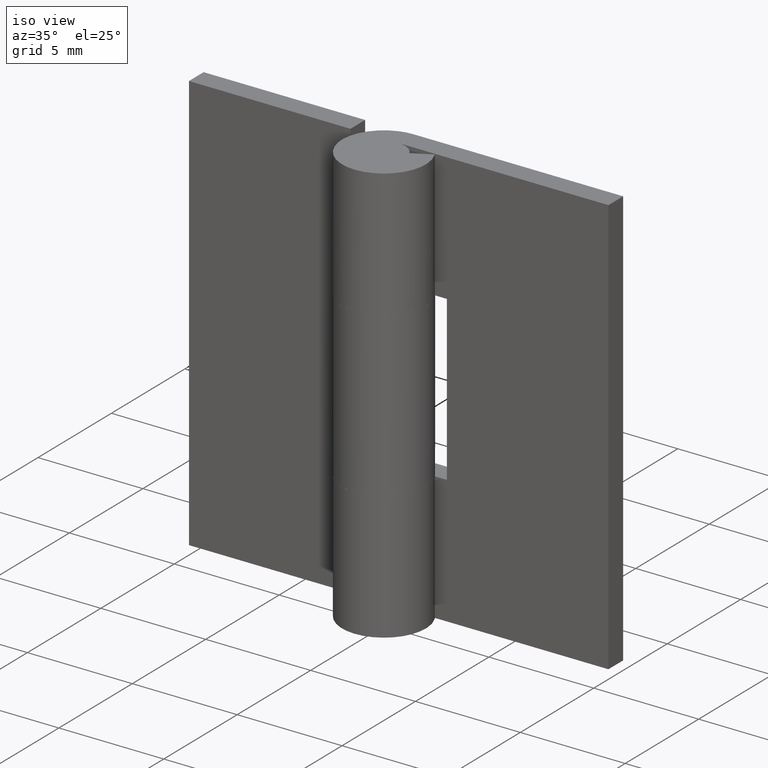
[diagram: clean part render]
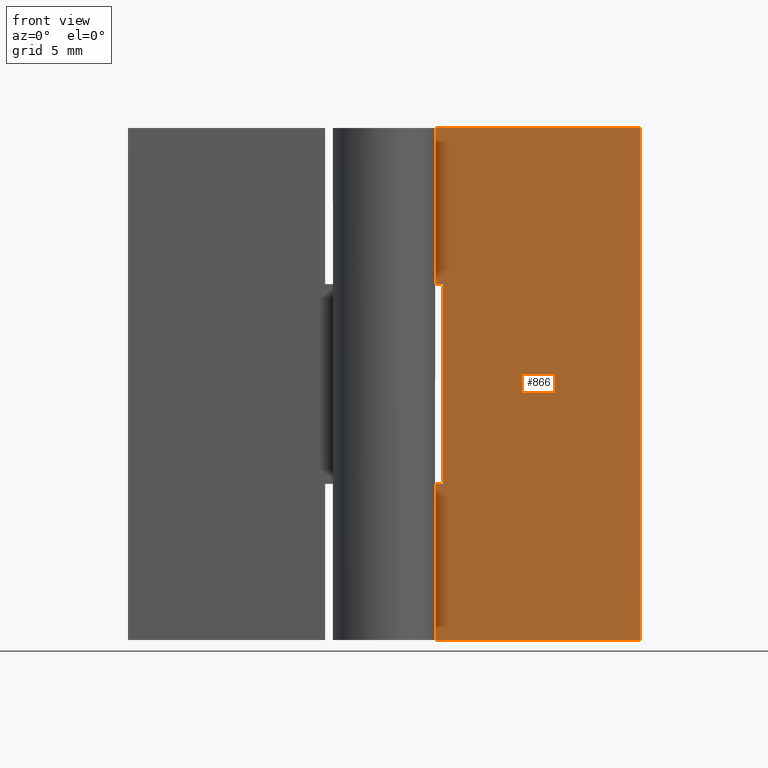
[diagram: tour spotlight — one face highlighted and labeled with its STEP entity id]
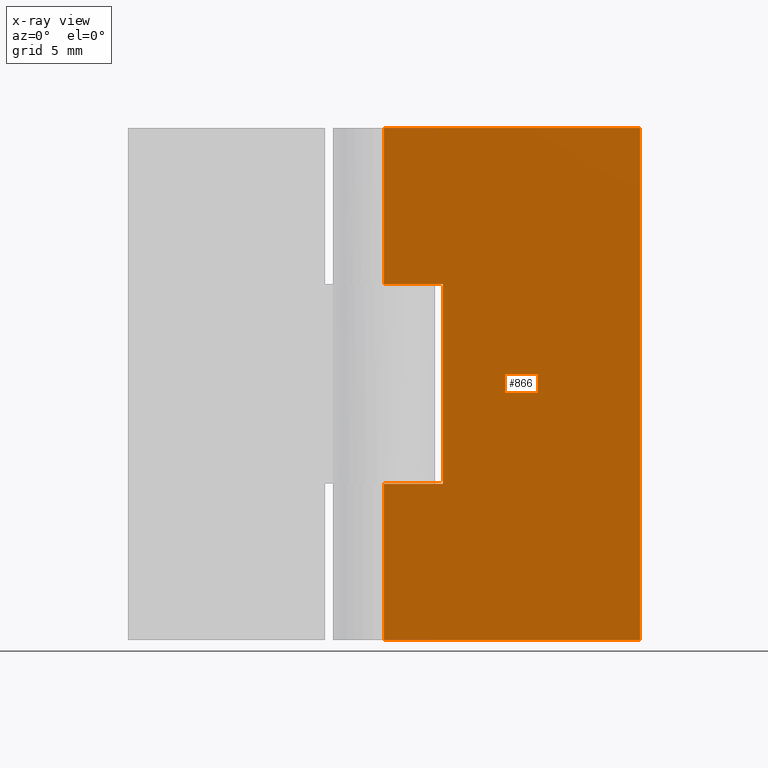
[diagram: x-ray of the same camera — body ghosted, this tour face saturated]
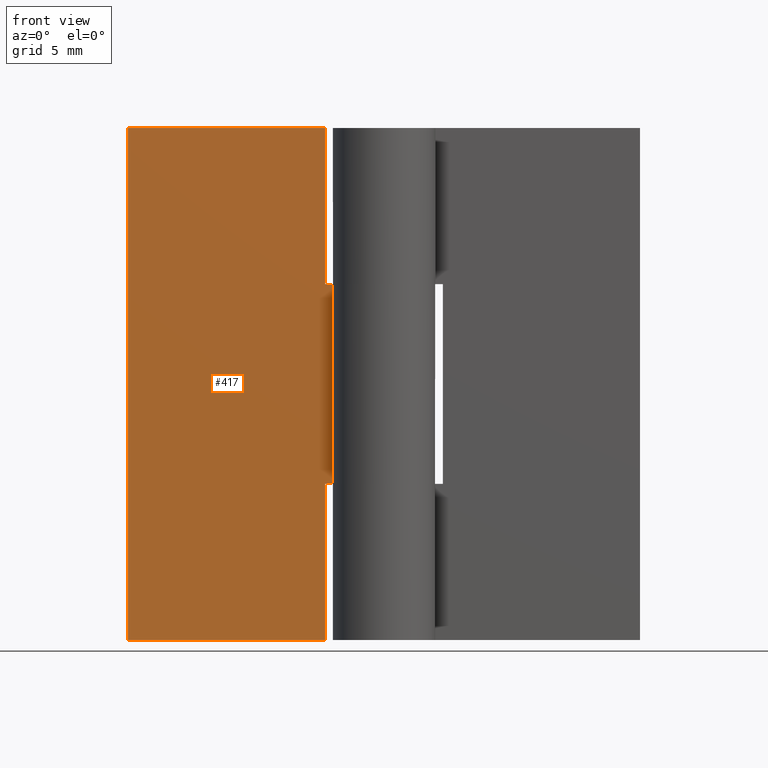
[diagram: tour spotlight — one face highlighted and labeled with its STEP entity id]
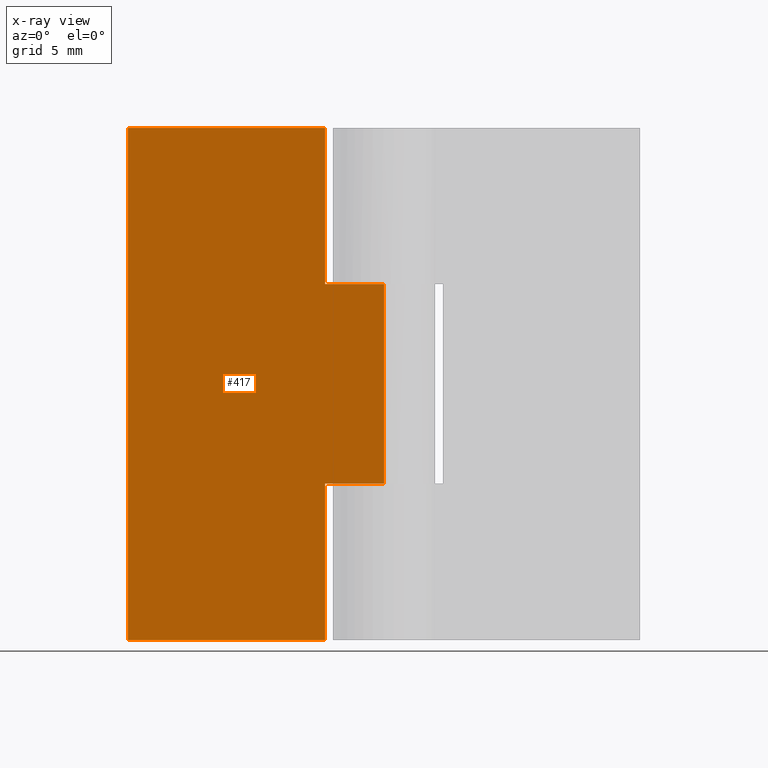
[diagram: x-ray of the same camera — body ghosted, this tour face saturated]
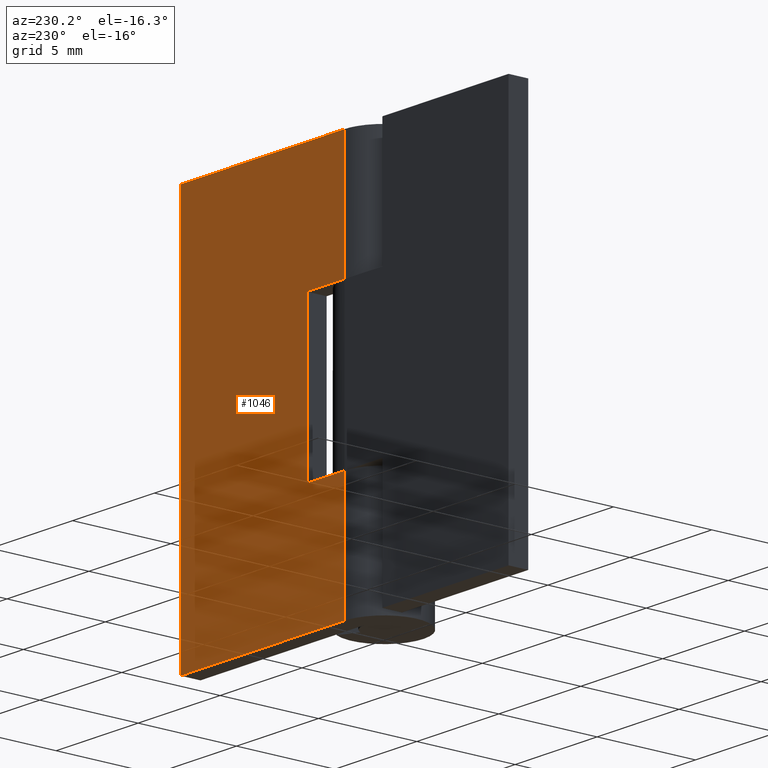
[diagram: tour spotlight — one face highlighted and labeled with its STEP entity id]
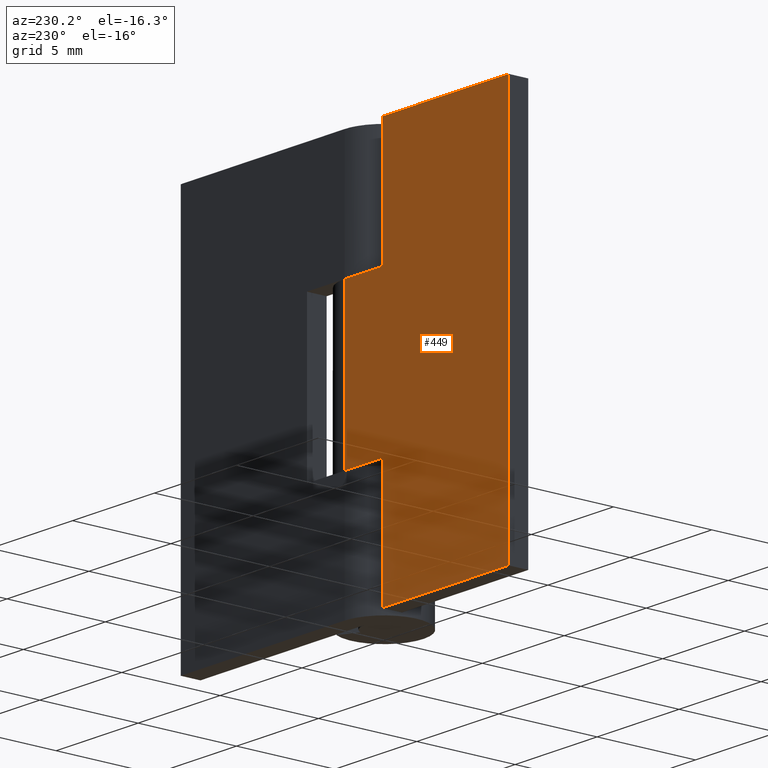
[diagram: tour spotlight — one face highlighted and labeled with its STEP entity id]
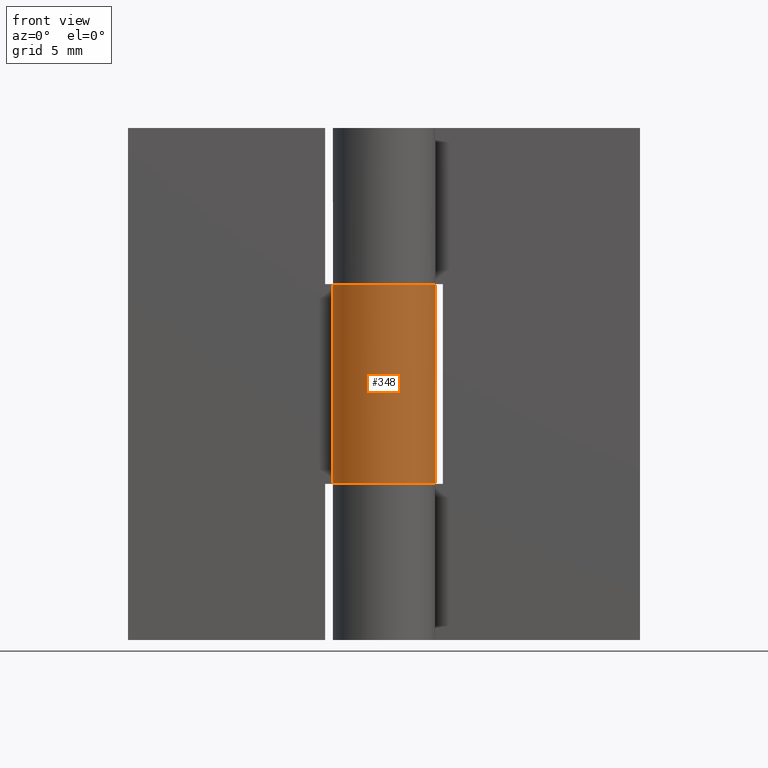
[diagram: tour spotlight — one face highlighted and labeled with its STEP entity id]
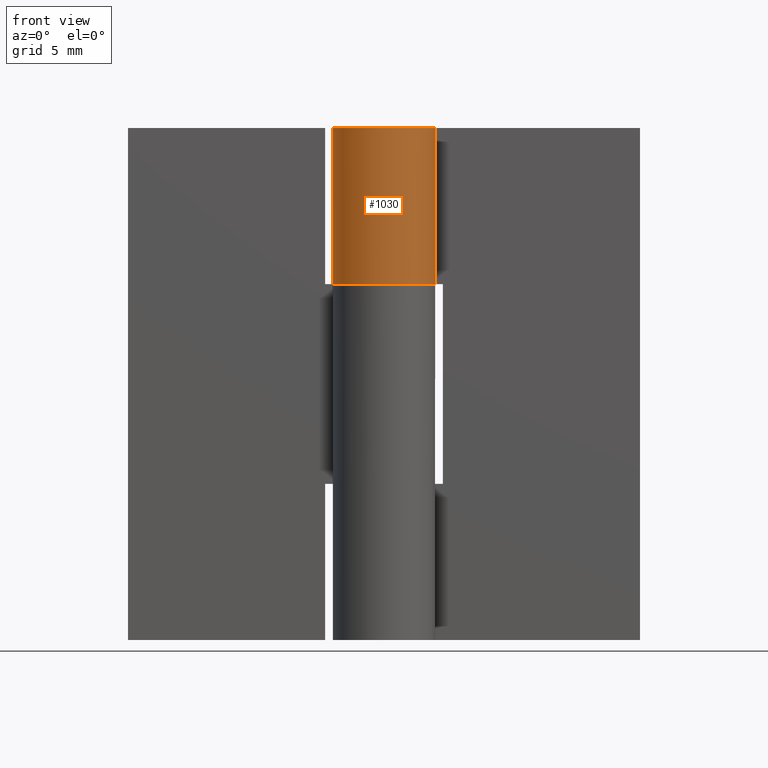
[diagram: tour spotlight — one face highlighted and labeled with its STEP entity id]
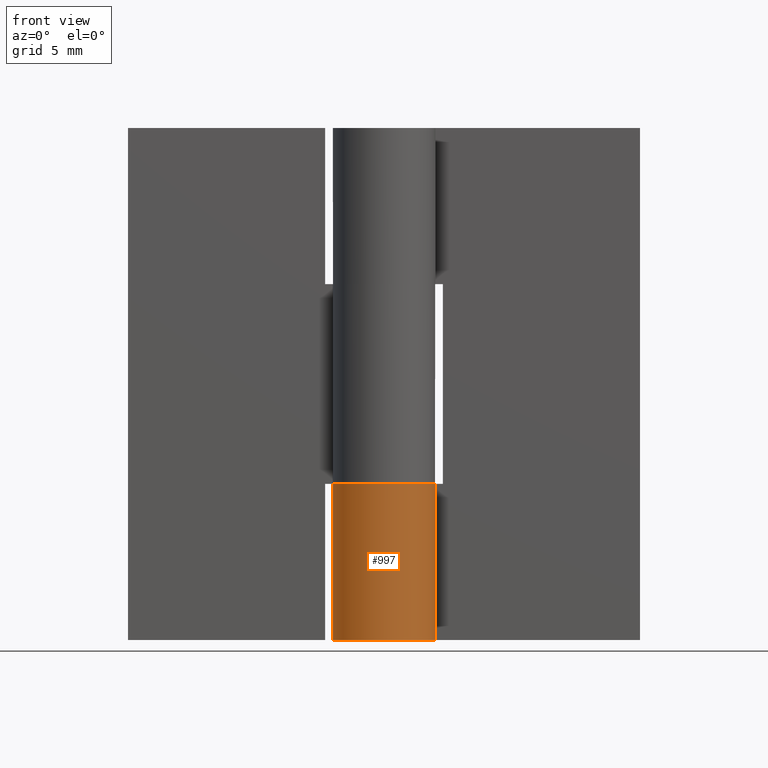
[diagram: tour spotlight — one face highlighted and labeled with its STEP entity id]
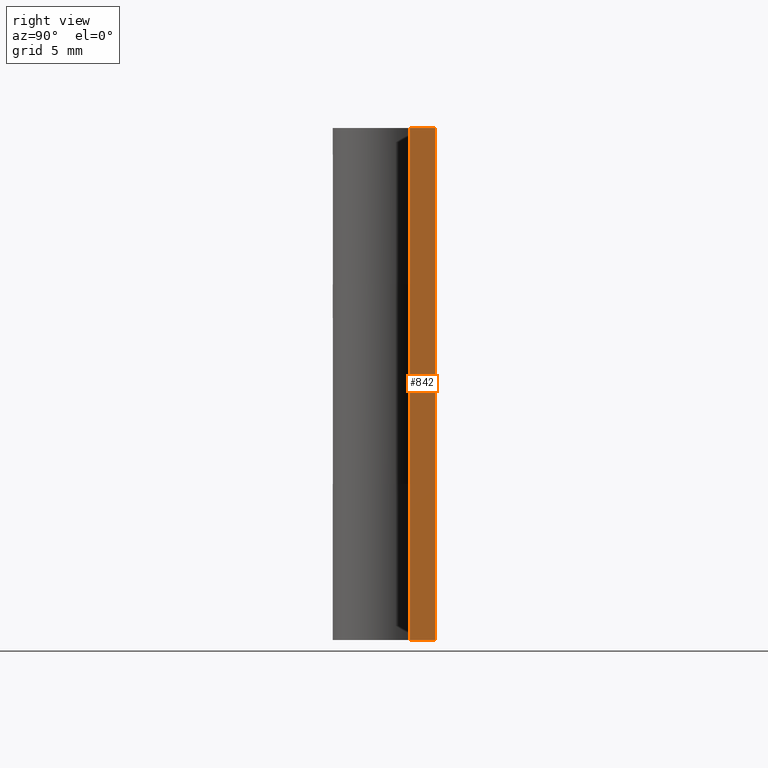
[diagram: tour spotlight — one face highlighted and labeled with its STEP entity id]
A machine part: a face-by-face anatomy tour. The part has 30 B-rep faces; the first image is the clean iso view, then the 8 largest visible faces are spotlighted one at a time (largest first), each with its STEP entity span.

Face 1 — front view, entity #866. An x-ray twin of the same camera follows (body ghosted, this face saturated) — the face is partly hidden behind the body. In plain terms, the highlighted face is a freeform B-spline surface patch.
Definition (entity closure, byte-faithful):
#526=CARTESIAN_POINT('',(-1.836937E-016,1.0,6.099997000000000));
#527=VERTEX_POINT('',#526);
#547=CARTESIAN_POINT('',(2.300003000000000,1.0,6.099997000000080));
#548=VERTEX_POINT('',#547);
#549=CARTESIAN_POINT('',(-1.836937E-016,1.0,6.099997000000000));
#550=CARTESIAN_POINT('',(2.300003000000000,1.0,6.099997000000080));
#551=QUASI_UNIFORM_CURVE('',1,(#549,#550),.UNSPECIFIED.,.F.,.U.);
#552=EDGE_CURVE('',#527,#548,#551,.T.);
#583=CARTESIAN_POINT('',(2.300003000000000,1.0,13.900002999999900));
#584=VERTEX_POINT('',#583);
#590=CARTESIAN_POINT('',(-1.836937E-016,1.0,13.900002999999939));
#591=VERTEX_POINT('',#590);
#592=CARTESIAN_POINT('',(2.300003000000000,1.0,13.900002999999900));
#593=CARTESIAN_POINT('',(-1.836937E-016,1.0,13.900002999999939));
#594=QUASI_UNIFORM_CURVE('',1,(#592,#593),.UNSPECIFIED.,.F.,.U.);
#595=EDGE_CURVE('',#584,#591,#594,.T.);
#652=CARTESIAN_POINT('',(2.300003000000000,1.0,6.099997000000080));
#653=CARTESIAN_POINT('',(2.300003000000000,1.0,13.900002999999900));
#654=QUASI_UNIFORM_CURVE('',1,(#652,#653),.UNSPECIFIED.,.F.,.U.);
#655=EDGE_CURVE('',#548,#584,#654,.T.);
#681=CARTESIAN_POINT('',(10.0,1.0,0.0));
#682=VERTEX_POINT('',#681);
#688=CARTESIAN_POINT('',(-1.836910E-016,1.0,0.0));
#689=VERTEX_POINT('',#688);
#690=CARTESIAN_POINT('',(-1.836910E-016,1.0,0.0));
#691=CARTESIAN_POINT('',(10.0,1.0,0.0));
#692=QUASI_UNIFORM_CURVE('',1,(#690,#691),.UNSPECIFIED.,.F.,.U.);
#693=EDGE_CURVE('',#689,#682,#692,.T.);
#787=CARTESIAN_POINT('',(-1.836910E-016,1.0,20.0));
#788=VERTEX_POINT('',#787);
#808=CARTESIAN_POINT('',(10.0,1.0,20.0));
#809=VERTEX_POINT('',#808);
#810=CARTESIAN_POINT('',(-1.836910E-016,1.0,20.0));
#811=CARTESIAN_POINT('',(10.0,1.0,20.0));
#812=QUASI_UNIFORM_CURVE('',1,(#810,#811),.UNSPECIFIED.,.F.,.U.);
#813=EDGE_CURVE('',#788,#809,#812,.T.);
#835=CARTESIAN_POINT('',(10.0,1.0,20.0));
#836=CARTESIAN_POINT('',(10.0,1.0,0.0));
#837=QUASI_UNIFORM_CURVE('',1,(#835,#836),.UNSPECIFIED.,.F.,.U.);
#838=EDGE_CURVE('',#809,#682,#837,.T.);
#843=CARTESIAN_POINT('',(-0.499499980618060,1.0,-0.998999961236120));
#844=CARTESIAN_POINT('',(-0.499499980618060,1.0,20.999000497677919));
#845=CARTESIAN_POINT('',(10.499500248838959,1.0,-0.998999961236120));
#846=CARTESIAN_POINT('',(10.499500248838959,1.0,20.999000497677919));
#847=B_SPLINE_SURFACE_WITH_KNOTS('',1,1,((#843,#845),(#844,#846)),.UNSPECIFIED.,.F.,.F.,.U.,(2,2),(2,2),(0.0,21.998000458914039),(0.0,10.999000229457019),.UNSPECIFIED.);
#848=ORIENTED_EDGE('',*,*,#595,.F.);
#849=ORIENTED_EDGE('',*,*,#655,.F.);
#850=ORIENTED_EDGE('',*,*,#552,.F.);
#851=CARTESIAN_POINT('',(-1.836937E-016,1.0,6.099997000000000));
#852=CARTESIAN_POINT('',(-1.836910E-016,1.0,0.0));
#853=QUASI_UNIFORM_CURVE('',1,(#851,#852),.UNSPECIFIED.,.F.,.U.);
#854=EDGE_CURVE('',#527,#689,#853,.T.);
#855=ORIENTED_EDGE('',*,*,#854,.T.);
#856=ORIENTED_EDGE('',*,*,#693,.T.);
#857=ORIENTED_EDGE('',*,*,#838,.F.);
#858=ORIENTED_EDGE('',*,*,#813,.F.);
#859=CARTESIAN_POINT('',(-1.836910E-016,1.0,20.0));
#860=CARTESIAN_POINT('',(-1.836937E-016,1.0,13.900002999999939));
#861=QUASI_UNIFORM_CURVE('',1,(#859,#860),.UNSPECIFIED.,.F.,.U.);
#862=EDGE_CURVE('',#788,#591,#861,.T.);
#863=ORIENTED_EDGE('',*,*,#862,.T.);
#864=EDGE_LOOP('',(#848,#849,#850,#855,#856,#857,#858,#863));
#865=FACE_OUTER_BOUND('',#864,.T.);
#866=ADVANCED_FACE('',(#865),#847,.F.);

Face 2 — front view, entity #417. An x-ray twin of the same camera follows (body ghosted, this face saturated) — the face is partly hidden behind the body. In plain terms, the highlighted face is a freeform B-spline surface patch.
Definition (entity closure, byte-faithful):
#49=CARTESIAN_POINT('',(-2.300003000000000,1.0,0.0));
#50=VERTEX_POINT('',#49);
#65=CARTESIAN_POINT('',(-2.300003000000000,1.0,6.099997000000100));
#66=VERTEX_POINT('',#65);
#72=CARTESIAN_POINT('',(-2.300003000000000,1.0,0.0));
#73=CARTESIAN_POINT('',(-2.300003000000000,1.0,6.099997000000100));
#74=QUASI_UNIFORM_CURVE('',1,(#72,#73),.UNSPECIFIED.,.F.,.U.);
#75=EDGE_CURVE('',#50,#66,#74,.T.);
#121=CARTESIAN_POINT('',(0.0,1.0,6.099997000000080));
#122=VERTEX_POINT('',#121);
#142=CARTESIAN_POINT('',(-2.300003000000000,1.0,6.099997000000100));
#143=CARTESIAN_POINT('',(0.0,1.0,6.099997000000080));
#144=QUASI_UNIFORM_CURVE('',1,(#142,#143),.UNSPECIFIED.,.F.,.U.);
#145=EDGE_CURVE('',#66,#122,#144,.T.);
#155=CARTESIAN_POINT('',(-2.300003000000000,1.0,13.900002999999900));
#156=VERTEX_POINT('',#155);
#171=CARTESIAN_POINT('',(-2.300003000000000,1.0,20.0));
#172=VERTEX_POINT('',#171);
#178=CARTESIAN_POINT('',(-2.300003000000000,1.0,13.900002999999900));
#179=CARTESIAN_POINT('',(-2.300003000000000,1.0,20.0));
#180=QUASI_UNIFORM_CURVE('',1,(#178,#179),.UNSPECIFIED.,.F.,.U.);
#181=EDGE_CURVE('',#156,#172,#180,.T.);
#193=CARTESIAN_POINT('',(0.0,1.0,13.900002999999939));
#194=VERTEX_POINT('',#193);
#248=CARTESIAN_POINT('',(0.0,1.0,13.900002999999939));
#249=CARTESIAN_POINT('',(-2.300003000000000,1.0,13.900002999999900));
#250=QUASI_UNIFORM_CURVE('',1,(#248,#249),.UNSPECIFIED.,.F.,.U.);
#251=EDGE_CURVE('',#194,#156,#250,.T.);
#262=CARTESIAN_POINT('',(-10.0,1.0,0.0));
#263=VERTEX_POINT('',#262);
#264=CARTESIAN_POINT('',(-10.0,1.0,0.0));
#265=CARTESIAN_POINT('',(-2.300003000000000,1.0,0.0));
#266=QUASI_UNIFORM_CURVE('',1,(#264,#265),.UNSPECIFIED.,.F.,.U.);
#267=EDGE_CURVE('',#263,#50,#266,.T.);
#289=CARTESIAN_POINT('',(-10.0,1.0,20.0));
#290=VERTEX_POINT('',#289);
#291=CARTESIAN_POINT('',(-10.0,1.0,20.0));
#292=CARTESIAN_POINT('',(-2.300003000000000,1.0,20.0));
#293=QUASI_UNIFORM_CURVE('',1,(#291,#292),.UNSPECIFIED.,.F.,.U.);
#294=EDGE_CURVE('',#290,#172,#293,.T.);
#387=CARTESIAN_POINT('',(0.0,1.0,13.900002999999939));
#388=CARTESIAN_POINT('',(0.0,1.0,6.099997000000080));
#389=QUASI_UNIFORM_CURVE('',1,(#387,#388),.UNSPECIFIED.,.F.,.U.);
#390=EDGE_CURVE('',#194,#122,#389,.T.);
#398=CARTESIAN_POINT('',(-10.499499980618060,1.0,-0.998999961236120));
#399=CARTESIAN_POINT('',(-10.499499980618060,1.0,20.999000497677919));
#400=CARTESIAN_POINT('',(0.499500248838961,1.0,-0.998999961236120));
#401=CARTESIAN_POINT('',(0.499500248838961,1.0,20.999000497677919));
#402=B_SPLINE_SURFACE_WITH_KNOTS('',1,1,((#398,#400),(#399,#401)),.UNSPECIFIED.,.F.,.F.,.U.,(2,2),(2,2),(0.0,21.998000458914039),(0.0,10.999000229457019),.UNSPECIFIED.);
#403=ORIENTED_EDGE('',*,*,#75,.T.);
#404=ORIENTED_EDGE('',*,*,#145,.T.);
#405=ORIENTED_EDGE('',*,*,#390,.F.);
#406=ORIENTED_EDGE('',*,*,#251,.T.);
#407=ORIENTED_EDGE('',*,*,#181,.T.);
#408=ORIENTED_EDGE('',*,*,#294,.F.);
#409=CARTESIAN_POINT('',(-10.0,1.0,20.0));
#410=CARTESIAN_POINT('',(-10.0,1.0,0.0));
#411=QUASI_UNIFORM_CURVE('',1,(#409,#410),.UNSPECIFIED.,.F.,.U.);
#412=EDGE_CURVE('',#290,#263,#411,.T.);
#413=ORIENTED_EDGE('',*,*,#412,.T.);
#414=ORIENTED_EDGE('',*,*,#267,.T.);
#415=EDGE_LOOP('',(#403,#404,#405,#406,#407,#408,#413,#414));
#416=FACE_OUTER_BOUND('',#415,.T.);
#417=ADVANCED_FACE('',(#416),#402,.F.);

Face 3 — auxiliary view, entity #1046. In plain terms, the highlighted face is a freeform B-spline surface patch.
Definition (entity closure, byte-faithful):
#498=CARTESIAN_POINT('',(0.0,2.0,6.099997000000000));
#499=VERTEX_POINT('',#498);
#554=CARTESIAN_POINT('',(2.300003000000000,2.0,6.099997000000000));
#555=VERTEX_POINT('',#554);
#561=CARTESIAN_POINT('',(0.0,2.0,6.099997000000000));
#562=CARTESIAN_POINT('',(2.300003000000000,2.0,6.099997000000000));
#563=QUASI_UNIFORM_CURVE('',1,(#561,#562),.UNSPECIFIED.,.F.,.U.);
#564=EDGE_CURVE('',#499,#555,#563,.T.);
#574=CARTESIAN_POINT('',(2.300003000000000,2.0,13.900002999999900));
#575=VERTEX_POINT('',#574);
#576=CARTESIAN_POINT('',(0.0,2.0,13.900002999999900));
#577=VERTEX_POINT('',#576);
#578=CARTESIAN_POINT('',(2.300003000000000,2.0,13.900002999999900));
#579=CARTESIAN_POINT('',(0.0,2.0,13.900002999999900));
#580=QUASI_UNIFORM_CURVE('',1,(#578,#579),.UNSPECIFIED.,.F.,.U.);
#581=EDGE_CURVE('',#575,#577,#580,.T.);
#658=CARTESIAN_POINT('',(2.300003000000000,2.0,6.099997000000000));
#659=CARTESIAN_POINT('',(2.300003000000000,2.0,13.900002999999900));
#660=QUASI_UNIFORM_CURVE('',1,(#658,#659),.UNSPECIFIED.,.F.,.U.);
#661=EDGE_CURVE('',#555,#575,#660,.T.);
#672=CARTESIAN_POINT('',(10.0,2.0,0.0));
#673=VERTEX_POINT('',#672);
#674=CARTESIAN_POINT('',(-3.673819E-016,2.0,0.0));
#675=VERTEX_POINT('',#674);
#676=CARTESIAN_POINT('',(10.0,2.0,0.0));
#677=CARTESIAN_POINT('',(-3.673819E-016,2.0,0.0));
#678=QUASI_UNIFORM_CURVE('',1,(#676,#677),.UNSPECIFIED.,.F.,.U.);
#679=EDGE_CURVE('',#673,#675,#678,.T.);
#750=CARTESIAN_POINT('',(10.0,2.0,20.0));
#751=VERTEX_POINT('',#750);
#752=CARTESIAN_POINT('',(-3.673819E-016,2.0,20.0));
#753=VERTEX_POINT('',#752);
#754=CARTESIAN_POINT('',(10.0,2.0,20.0));
#755=CARTESIAN_POINT('',(-3.673819E-016,2.0,20.0));
#756=QUASI_UNIFORM_CURVE('',1,(#754,#755),.UNSPECIFIED.,.F.,.U.);
#757=EDGE_CURVE('',#751,#753,#756,.T.);
#829=CARTESIAN_POINT('',(10.0,2.0,20.0));
#830=CARTESIAN_POINT('',(10.0,2.0,0.0));
#831=QUASI_UNIFORM_CURVE('',1,(#829,#830),.UNSPECIFIED.,.F.,.U.);
#832=EDGE_CURVE('',#751,#673,#831,.T.);
#988=CARTESIAN_POINT('',(0.0,2.0,6.099997000000000));
#989=CARTESIAN_POINT('',(-3.673819E-016,2.0,0.0));
#990=QUASI_UNIFORM_CURVE('',1,(#988,#989),.UNSPECIFIED.,.F.,.U.);
#991=EDGE_CURVE('',#499,#675,#990,.T.);
#1023=CARTESIAN_POINT('',(-3.673819E-016,2.0,20.0));
#1024=CARTESIAN_POINT('',(0.0,2.0,13.900002999999900));
#1025=QUASI_UNIFORM_CURVE('',1,(#1023,#1024),.UNSPECIFIED.,.F.,.U.);
#1026=EDGE_CURVE('',#753,#577,#1025,.T.);
#1031=CARTESIAN_POINT('',(-0.499499980618060,2.0,20.998999961236120));
#1032=CARTESIAN_POINT('',(-0.499499980618060,2.0,-0.999000497677922));
#1033=CARTESIAN_POINT('',(10.499500248838959,2.0,20.998999961236120));
#1034=CARTESIAN_POINT('',(10.499500248838959,2.0,-0.999000497677922));
#1035=B_SPLINE_SURFACE_WITH_KNOTS('',1,1,((#1031,#1033),(#1032,#1034)),.UNSPECIFIED.,.F.,.F.,.U.,(2,2),(2,2),(0.0,21.998000458914039),(0.0,10.999000229457019),.UNSPECIFIED.);
#1036=ORIENTED_EDGE('',*,*,#581,.T.);
#1037=ORIENTED_EDGE('',*,*,#1026,.F.);
#1038=ORIENTED_EDGE('',*,*,#757,.F.);
#1039=ORIENTED_EDGE('',*,*,#832,.T.);
#1040=ORIENTED_EDGE('',*,*,#679,.T.);
#1041=ORIENTED_EDGE('',*,*,#991,.F.);
#1042=ORIENTED_EDGE('',*,*,#564,.T.);
#1043=ORIENTED_EDGE('',*,*,#661,.T.);
#1044=EDGE_LOOP('',(#1036,#1037,#1038,#1039,#1040,#1041,#1042,#1043));
#1045=FACE_OUTER_BOUND('',#1044,.T.);
#1046=ADVANCED_FACE('',(#1045),#1035,.F.);

Face 4 — auxiliary view, entity #449. In plain terms, the highlighted face is a freeform B-spline surface patch.
Definition (entity closure, byte-faithful):
#51=CARTESIAN_POINT('',(-2.300003000000000,2.0,0.0));
#52=VERTEX_POINT('',#51);
#58=CARTESIAN_POINT('',(-2.300003000000000,2.0,6.099997000000100));
#59=VERTEX_POINT('',#58);
#60=CARTESIAN_POINT('',(-2.300003000000000,2.0,6.099997000000100));
#61=CARTESIAN_POINT('',(-2.300003000000000,2.0,0.0));
#62=QUASI_UNIFORM_CURVE('',1,(#60,#61),.UNSPECIFIED.,.F.,.U.);
#63=EDGE_CURVE('',#59,#52,#62,.T.);
#86=CARTESIAN_POINT('',(0.0,2.0,6.099997000000100));
#87=VERTEX_POINT('',#86);
#88=CARTESIAN_POINT('',(0.0,2.0,6.099997000000100));
#89=CARTESIAN_POINT('',(-2.300003000000000,2.0,6.099997000000100));
#90=QUASI_UNIFORM_CURVE('',1,(#88,#89),.UNSPECIFIED.,.F.,.U.);
#91=EDGE_CURVE('',#87,#59,#90,.T.);
#157=CARTESIAN_POINT('',(-2.300003000000000,2.0,13.900002999999900));
#158=VERTEX_POINT('',#157);
#164=CARTESIAN_POINT('',(-2.300003000000000,2.0,20.0));
#165=VERTEX_POINT('',#164);
#166=CARTESIAN_POINT('',(-2.300003000000000,2.0,13.900002999999900));
#167=CARTESIAN_POINT('',(-2.300003000000000,2.0,20.0));
#168=QUASI_UNIFORM_CURVE('',1,(#166,#167),.UNSPECIFIED.,.F.,.U.);
#169=EDGE_CURVE('',#158,#165,#168,.T.);
#221=CARTESIAN_POINT('',(0.0,2.0,13.900002999999900));
#222=VERTEX_POINT('',#221);
#242=CARTESIAN_POINT('',(0.0,2.0,13.900002999999900));
#243=CARTESIAN_POINT('',(-2.300003000000000,2.0,13.900002999999900));
#244=QUASI_UNIFORM_CURVE('',1,(#242,#243),.UNSPECIFIED.,.F.,.U.);
#245=EDGE_CURVE('',#222,#158,#244,.T.);
#269=CARTESIAN_POINT('',(-10.0,2.0,0.0));
#270=VERTEX_POINT('',#269);
#276=CARTESIAN_POINT('',(-2.300003000000000,2.0,0.0));
#277=CARTESIAN_POINT('',(-10.0,2.0,0.0));
#278=QUASI_UNIFORM_CURVE('',1,(#276,#277),.UNSPECIFIED.,.F.,.U.);
#279=EDGE_CURVE('',#52,#270,#278,.T.);
#297=CARTESIAN_POINT('',(-10.0,2.0,20.0));
#298=VERTEX_POINT('',#297);
#299=CARTESIAN_POINT('',(-2.300003000000000,2.0,20.0));
#300=CARTESIAN_POINT('',(-10.0,2.0,20.0));
#301=QUASI_UNIFORM_CURVE('',1,(#299,#300),.UNSPECIFIED.,.F.,.U.);
#302=EDGE_CURVE('',#165,#298,#301,.T.);
#340=CARTESIAN_POINT('',(0.0,2.0,13.900002999999900));
#341=CARTESIAN_POINT('',(0.0,2.0,6.099997000000100));
#342=QUASI_UNIFORM_CURVE('',1,(#340,#341),.UNSPECIFIED.,.F.,.U.);
#343=EDGE_CURVE('',#222,#87,#342,.T.);
#426=CARTESIAN_POINT('',(-10.0,2.0,20.0));
#427=CARTESIAN_POINT('',(-10.0,2.0,0.0));
#428=QUASI_UNIFORM_CURVE('',1,(#426,#427),.UNSPECIFIED.,.F.,.U.);
#429=EDGE_CURVE('',#298,#270,#428,.T.);
#434=CARTESIAN_POINT('',(-10.499499980618060,2.0,20.998999961236120));
#435=CARTESIAN_POINT('',(-10.499499980618060,2.0,-0.999000497677922));
#436=CARTESIAN_POINT('',(0.499500248838961,2.0,20.998999961236120));
#437=CARTESIAN_POINT('',(0.499500248838961,2.0,-0.999000497677922));
#438=B_SPLINE_SURFACE_WITH_KNOTS('',1,1,((#434,#436),(#435,#437)),.UNSPECIFIED.,.F.,.F.,.U.,(2,2),(2,2),(0.0,21.998000458914039),(0.0,10.999000229457019),.UNSPECIFIED.);
#439=ORIENTED_EDGE('',*,*,#343,.T.);
#440=ORIENTED_EDGE('',*,*,#91,.T.);
#441=ORIENTED_EDGE('',*,*,#63,.T.);
#442=ORIENTED_EDGE('',*,*,#279,.T.);
#443=ORIENTED_EDGE('',*,*,#429,.F.);
#444=ORIENTED_EDGE('',*,*,#302,.F.);
#445=ORIENTED_EDGE('',*,*,#169,.F.);
#446=ORIENTED_EDGE('',*,*,#245,.F.);
#447=EDGE_LOOP('',(#439,#440,#441,#442,#443,#444,#445,#446));
#448=FACE_OUTER_BOUND('',#447,.T.);
#449=ADVANCED_FACE('',(#448),#438,.F.);

Face 5 — front view, entity #348. In plain terms, the highlighted face is a freeform B-spline surface patch.
Definition (entity closure, byte-faithful):
#86=CARTESIAN_POINT('',(0.0,2.0,6.099997000000100));
#87=VERTEX_POINT('',#86);
#93=CARTESIAN_POINT('',(-1.759971590679805,0.950000000000000,6.099997000000080));
#94=VERTEX_POINT('',#93);
#95=CARTESIAN_POINT('',(0.0,2.0,6.099997000000100));
#96=CARTESIAN_POINT('',(1.523311426391113,2.000000000000000,6.099997000000080));
#97=CARTESIAN_POINT('',(1.928096575312494,0.531454227820452,6.099997000000080));
#98=CARTESIAN_POINT('',(2.332881724233873,-0.937091544359094,6.099997000000080));
#99=CARTESIAN_POINT('',(1.024695076595961,-1.717556403731766,6.099997000000080));
#100=CARTESIAN_POINT('',(-0.283491571041951,-2.498021263104438,6.099997000000080));
#101=CARTESIAN_POINT('',(-1.383518044628767,-1.444256840103794,6.099997000000080));
#102=CARTESIAN_POINT('',(-2.483544518215582,-0.390492417103149,6.099997000000080));
#103=CARTESIAN_POINT('',(-1.759971590679806,0.949999999999997,6.099997000000080));
#111=(BOUNDED_CURVE()B_SPLINE_CURVE(2,(#95,#96,#97,#98,#99,#100,#101,#102,#103),.UNSPECIFIED.,.F.,.U.)B_SPLINE_CURVE_WITH_KNOTS((3,2,2,2,3),(0.0,0.250000000000000,0.500000000000000,0.750000000000000,1.0),.UNSPECIFIED.)CURVE()GEOMETRIC_REPRESENTATION_ITEM()RATIONAL_B_SPLINE_CURVE((1.0,0.795527219493534,1.0,0.795527219493534,1.0,0.795527219493534,1.0,0.795527219493534,1.0))REPRESENTATION_ITEM(''));
#112=EDGE_CURVE('',#87,#94,#111,.T.);
#214=CARTESIAN_POINT('',(-1.759971590679805,0.950000000000000,13.900002999999939));
#215=VERTEX_POINT('',#214);
#221=CARTESIAN_POINT('',(0.0,2.0,13.900002999999900));
#222=VERTEX_POINT('',#221);
#223=CARTESIAN_POINT('',(-1.759971590679804,0.950000000000000,13.900002999999939));
#224=CARTESIAN_POINT('',(-2.483544518215584,-0.390492417103144,13.900002999999939));
#225=CARTESIAN_POINT('',(-1.383518044628769,-1.444256840103792,13.900002999999939));
#226=CARTESIAN_POINT('',(-0.283491571041955,-2.498021263104437,13.900002999999939));
#227=CARTESIAN_POINT('',(1.024695076595959,-1.717556403731767,13.900002999999939));
#228=CARTESIAN_POINT('',(2.332881724233873,-0.937091544359097,13.900002999999939));
#229=CARTESIAN_POINT('',(1.928096575312494,0.531454227820451,13.900002999999939));
#230=CARTESIAN_POINT('',(1.523311426391115,2.000000000000000,13.900002999999939));
#231=CARTESIAN_POINT('',(0.0,2.0,13.900002999999900));
#239=(BOUNDED_CURVE()B_SPLINE_CURVE(2,(#223,#224,#225,#226,#227,#228,#229,#230,#231),.UNSPECIFIED.,.F.,.U.)B_SPLINE_CURVE_WITH_KNOTS((3,2,2,2,3),(0.0,0.250000000000000,0.500000000000000,0.750000000000000,1.0),.UNSPECIFIED.)CURVE()GEOMETRIC_REPRESENTATION_ITEM()RATIONAL_B_SPLINE_CURVE((1.0,0.795527219493534,1.0,0.795527219493534,1.0,0.795527219493534,1.0,0.795527219493534,1.0))REPRESENTATION_ITEM(''));
#240=EDGE_CURVE('',#215,#222,#239,.T.);
#312=CARTESIAN_POINT('',(-1.723258320883051,1.015076725921408,14.095003149999940));
#313=CARTESIAN_POINT('',(-1.723258320883051,1.015076725921408,5.900121846250083));
#314=CARTESIAN_POINT('',(-2.969344769301742,-1.100358281051034,14.095003149999940));
#315=CARTESIAN_POINT('',(-2.969344769301742,-1.100358281051034,5.900121846250083));
#316=CARTESIAN_POINT('',(-0.645632757753657,-1.892923226682848,14.095003149999940));
#317=CARTESIAN_POINT('',(-0.645632757753657,-1.892923226682848,5.900121846250083));
#318=CARTESIAN_POINT('',(1.678079253794428,-2.685488172314661,14.095003149999940));
#319=CARTESIAN_POINT('',(1.678079253794428,-2.685488172314661,5.900121846250083));
#320=CARTESIAN_POINT('',(1.984374898665018,-0.249512046899941,14.095003149999940));
#321=CARTESIAN_POINT('',(1.984374898665018,-0.249512046899941,5.900121846250083));
#322=CARTESIAN_POINT('',(2.290670543535608,2.186464078514781,14.095003149999940));
#323=CARTESIAN_POINT('',(2.290670543535608,2.186464078514781,5.900121846250083));
#324=CARTESIAN_POINT('',(-0.156918191455691,1.993834667466256,14.095003149999940));
#325=CARTESIAN_POINT('',(-0.156918191455691,1.993834667466256,5.900121846250083));
#333=(BOUNDED_SURFACE()B_SPLINE_SURFACE(1,2,((#312,#314,#316,#318,#320,#322,#324),(#313,#315,#317,#319,#321,#323,#325)),.UNSPECIFIED.,.F.,.F.,.U.)B_SPLINE_SURFACE_WITH_KNOTS((2,2),(3,2,2,3),(0.0,8.194881303749856),(0.0,3.801531476131832,7.603062952263665,11.404594428395500),.UNSPECIFIED.)GEOMETRIC_REPRESENTATION_ITEM()RATIONAL_B_SPLINE_SURFACE(((1.0,0.631578351302498,1.0,0.631578351302498,1.0,0.631578351302498,1.0),(1.0,0.631578351302498,1.0,0.631578351302498,1.0,0.631578351302498,1.0)))REPRESENTATION_ITEM('')SURFACE());
#334=CARTESIAN_POINT('',(-1.759971590679805,0.950000000000000,13.900002999999939));
#335=CARTESIAN_POINT('',(-1.759971590679805,0.950000000000000,6.099997000000080));
#336=QUASI_UNIFORM_CURVE('',1,(#334,#335),.UNSPECIFIED.,.F.,.U.);
#337=EDGE_CURVE('',#215,#94,#336,.T.);
#338=ORIENTED_EDGE('',*,*,#337,.T.);
#339=ORIENTED_EDGE('',*,*,#112,.F.);
#340=CARTESIAN_POINT('',(0.0,2.0,13.900002999999900));
#341=CARTESIAN_POINT('',(0.0,2.0,6.099997000000100));
#342=QUASI_UNIFORM_CURVE('',1,(#340,#341),.UNSPECIFIED.,.F.,.U.);
#343=EDGE_CURVE('',#222,#87,#342,.T.);
#344=ORIENTED_EDGE('',*,*,#343,.F.);
#345=ORIENTED_EDGE('',*,*,#240,.F.);
#346=EDGE_LOOP('',(#338,#339,#344,#345));
#347=FACE_OUTER_BOUND('',#346,.T.);
#348=ADVANCED_FACE('',(#347),#333,.T.);

Face 6 — front view, entity #1030. In plain terms, the highlighted face is a freeform B-spline surface patch.
Definition (entity closure, byte-faithful):
#576=CARTESIAN_POINT('',(0.0,2.0,13.900002999999900));
#577=VERTEX_POINT('',#576);
#618=CARTESIAN_POINT('',(1.759971590679805,0.950000000000000,13.900002999999939));
#619=VERTEX_POINT('',#618);
#625=CARTESIAN_POINT('',(0.0,2.0,13.900002999999900));
#626=CARTESIAN_POINT('',(-1.523311426391113,2.000000000000000,13.900002999999939));
#627=CARTESIAN_POINT('',(-1.928096575312494,0.531454227820452,13.900002999999939));
#628=CARTESIAN_POINT('',(-2.332881724233873,-0.937091544359094,13.900002999999939));
#629=CARTESIAN_POINT('',(-1.024695076595961,-1.717556403731766,13.900002999999939));
#630=CARTESIAN_POINT('',(0.283491571041951,-2.498021263104438,13.900002999999939));
#631=CARTESIAN_POINT('',(1.383518044628767,-1.444256840103794,13.900002999999939));
#632=CARTESIAN_POINT('',(2.483544518215582,-0.390492417103149,13.900002999999939));
#633=CARTESIAN_POINT('',(1.759971590679806,0.949999999999997,13.900002999999939));
#641=(BOUNDED_CURVE()B_SPLINE_CURVE(2,(#625,#626,#627,#628,#629,#630,#631,#632,#633),.UNSPECIFIED.,.F.,.U.)B_SPLINE_CURVE_WITH_KNOTS((3,2,2,2,3),(0.0,0.250000000000000,0.500000000000000,0.750000000000000,1.0),.UNSPECIFIED.)CURVE()GEOMETRIC_REPRESENTATION_ITEM()RATIONAL_B_SPLINE_CURVE((1.0,0.795527219493534,1.0,0.795527219493534,1.0,0.795527219493534,1.0,0.795527219493534,1.0))REPRESENTATION_ITEM(''));
#642=EDGE_CURVE('',#577,#619,#641,.T.);
#752=CARTESIAN_POINT('',(-3.673819E-016,2.0,20.0));
#753=VERTEX_POINT('',#752);
#759=CARTESIAN_POINT('',(1.759971590679805,0.950000000000000,20.0));
#760=VERTEX_POINT('',#759);
#761=CARTESIAN_POINT('',(1.759971590679804,0.950000000000000,20.0));
#762=CARTESIAN_POINT('',(2.483544518215584,-0.390492417103144,20.000000000000004));
#763=CARTESIAN_POINT('',(1.383518044628769,-1.444256840103792,20.0));
#764=CARTESIAN_POINT('',(0.283491571041955,-2.498021263104437,20.000000000000004));
#765=CARTESIAN_POINT('',(-1.024695076595959,-1.717556403731767,20.0));
#766=CARTESIAN_POINT('',(-2.332881724233873,-0.937091544359097,20.000000000000004));
#767=CARTESIAN_POINT('',(-1.928096575312494,0.531454227820451,20.0));
#768=CARTESIAN_POINT('',(-1.523311426391115,2.000000000000000,20.000000000000004));
#769=CARTESIAN_POINT('',(0.0,2.0,20.0));
#777=(BOUNDED_CURVE()B_SPLINE_CURVE(2,(#761,#762,#763,#764,#765,#766,#767,#768,#769),.UNSPECIFIED.,.F.,.U.)B_SPLINE_CURVE_WITH_KNOTS((3,2,2,2,3),(0.0,0.250000000000000,0.500000000000000,0.750000000000000,1.0),.UNSPECIFIED.)CURVE()GEOMETRIC_REPRESENTATION_ITEM()RATIONAL_B_SPLINE_CURVE((1.0,0.795527219493534,1.0,0.795527219493534,1.0,0.795527219493534,1.0,0.795527219493534,1.0))REPRESENTATION_ITEM(''));
#778=EDGE_CURVE('',#760,#753,#777,.T.);
#957=CARTESIAN_POINT('',(1.759971590679805,0.950000000000000,20.0));
#958=CARTESIAN_POINT('',(1.759971590679805,0.950000000000000,13.900002999999939));
#959=QUASI_UNIFORM_CURVE('',1,(#957,#958),.UNSPECIFIED.,.F.,.U.);
#960=EDGE_CURVE('',#760,#619,#959,.T.);
#998=CARTESIAN_POINT('',(0.052353896615749,1.999314649951114,20.152499925000011));
#999=CARTESIAN_POINT('',(0.052353896615749,1.999314649951114,13.743690576874901));
#1000=CARTESIAN_POINT('',(-2.373008715479058,2.062825005088270,20.152499925000008));
#1001=CARTESIAN_POINT('',(-2.373008715479058,2.062825005088270,13.743690576874897));
#1002=CARTESIAN_POINT('',(-1.972571203074462,-0.330095211721351,20.152499925000011));
#1003=CARTESIAN_POINT('',(-1.972571203074462,-0.330095211721351,13.743690576874901));
#1004=CARTESIAN_POINT('',(-1.572133690669869,-2.723015428530974,20.152499925000008));
#1005=CARTESIAN_POINT('',(-1.572133690669869,-2.723015428530974,13.743690576874897));
#1006=CARTESIAN_POINT('',(0.700414762518930,-1.873344378496796,20.152499925000011));
#1007=CARTESIAN_POINT('',(0.700414762518930,-1.873344378496796,13.743690576874901));
#1008=CARTESIAN_POINT('',(2.972963215707730,-1.023673328462620,20.152499925000008));
#1009=CARTESIAN_POINT('',(2.972963215707730,-1.023673328462620,13.743690576874897));
#1010=CARTESIAN_POINT('',(1.705280328708187,1.044997129431892,20.152499925000011));
#1011=CARTESIAN_POINT('',(1.705280328708187,1.044997129431892,13.743690576874901));
#1019=(BOUNDED_SURFACE()B_SPLINE_SURFACE(1,2,((#998,#1000,#1002,#1004,#1006,#1008,#1010),(#999,#1001,#1003,#1005,#1007,#1009,#1011)),.UNSPECIFIED.,.F.,.F.,.U.)B_SPLINE_SURFACE_WITH_KNOTS((2,2),(3,2,2,3),(0.0,6.408809348125112),(0.0,3.773044950169767,7.546089900339533,11.319134850509300),.UNSPECIFIED.)GEOMETRIC_REPRESENTATION_ITEM()RATIONAL_B_SPLINE_SURFACE(((1.0,0.636078220277764,1.0,0.636078220277764,1.0,0.636078220277764,1.0),(1.0,0.636078220277764,1.0,0.636078220277764,1.0,0.636078220277764,1.0)))REPRESENTATION_ITEM('')SURFACE());
#1020=ORIENTED_EDGE('',*,*,#642,.T.);
#1021=ORIENTED_EDGE('',*,*,#960,.F.);
#1022=ORIENTED_EDGE('',*,*,#778,.T.);
#1023=CARTESIAN_POINT('',(-3.673819E-016,2.0,20.0));
#1024=CARTESIAN_POINT('',(0.0,2.0,13.900002999999900));
#1025=QUASI_UNIFORM_CURVE('',1,(#1023,#1024),.UNSPECIFIED.,.F.,.U.);
#1026=EDGE_CURVE('',#753,#577,#1025,.T.);
#1027=ORIENTED_EDGE('',*,*,#1026,.T.);
#1028=EDGE_LOOP('',(#1020,#1021,#1022,#1027));
#1029=FACE_OUTER_BOUND('',#1028,.T.);
#1030=ADVANCED_FACE('',(#1029),#1019,.T.);

Face 7 — front view, entity #997. In plain terms, the highlighted face is a freeform B-spline surface patch.
Definition (entity closure, byte-faithful):
#496=CARTESIAN_POINT('',(1.759971590679805,0.950000000000000,6.099997000000000));
#497=VERTEX_POINT('',#496);
#498=CARTESIAN_POINT('',(0.0,2.0,6.099997000000000));
#499=VERTEX_POINT('',#498);
#500=CARTESIAN_POINT('',(1.759971590679804,0.950000000000000,6.099997000000000));
#501=CARTESIAN_POINT('',(2.483544518215584,-0.390492417103144,6.099996999999999));
#502=CARTESIAN_POINT('',(1.383518044628769,-1.444256840103792,6.099997000000000));
#503=CARTESIAN_POINT('',(0.283491571041955,-2.498021263104437,6.099996999999999));
#504=CARTESIAN_POINT('',(-1.024695076595959,-1.717556403731767,6.099997000000000));
#505=CARTESIAN_POINT('',(-2.332881724233873,-0.937091544359097,6.099996999999999));
#506=CARTESIAN_POINT('',(-1.928096575312494,0.531454227820451,6.099997000000000));
#507=CARTESIAN_POINT('',(-1.523311426391115,2.000000000000000,6.099996999999999));
#508=CARTESIAN_POINT('',(0.0,2.0,6.099997000000000));
#516=(BOUNDED_CURVE()B_SPLINE_CURVE(2,(#500,#501,#502,#503,#504,#505,#506,#507,#508),.UNSPECIFIED.,.F.,.U.)B_SPLINE_CURVE_WITH_KNOTS((3,2,2,2,3),(0.0,0.250000000000000,0.500000000000000,0.750000000000000,1.0),.UNSPECIFIED.)CURVE()GEOMETRIC_REPRESENTATION_ITEM()RATIONAL_B_SPLINE_CURVE((1.0,0.795527219493534,1.0,0.795527219493534,1.0,0.795527219493534,1.0,0.795527219493534,1.0))REPRESENTATION_ITEM(''));
#517=EDGE_CURVE('',#497,#499,#516,.T.);
#674=CARTESIAN_POINT('',(-3.673819E-016,2.0,0.0));
#675=VERTEX_POINT('',#674);
#716=CARTESIAN_POINT('',(1.759971590679805,0.950000000000000,0.0));
#717=VERTEX_POINT('',#716);
#723=CARTESIAN_POINT('',(1.759971590679804,0.950000000000000,0.0));
#724=CARTESIAN_POINT('',(2.483544518215584,-0.390492417103144,0.0));
#725=CARTESIAN_POINT('',(1.383518044628769,-1.444256840103792,0.0));
#726=CARTESIAN_POINT('',(0.283491571041955,-2.498021263104437,0.0));
#727=CARTESIAN_POINT('',(-1.024695076595959,-1.717556403731767,0.0));
#728=CARTESIAN_POINT('',(-2.332881724233873,-0.937091544359097,0.0));
#729=CARTESIAN_POINT('',(-1.928096575312494,0.531454227820451,0.0));
#730=CARTESIAN_POINT('',(-1.523311426391115,2.000000000000000,0.0));
#731=CARTESIAN_POINT('',(0.0,2.0,0.0));
#739=(BOUNDED_CURVE()B_SPLINE_CURVE(2,(#723,#724,#725,#726,#727,#728,#729,#730,#731),.UNSPECIFIED.,.F.,.U.)B_SPLINE_CURVE_WITH_KNOTS((3,2,2,2,3),(0.0,0.250000000000000,0.500000000000000,0.750000000000000,1.0),.UNSPECIFIED.)CURVE()GEOMETRIC_REPRESENTATION_ITEM()RATIONAL_B_SPLINE_CURVE((1.0,0.795527219493534,1.0,0.795527219493534,1.0,0.795527219493534,1.0,0.795527219493534,1.0))REPRESENTATION_ITEM(''));
#740=EDGE_CURVE('',#717,#675,#739,.T.);
#939=CARTESIAN_POINT('',(1.759971590679805,0.950000000000000,6.099997000000000));
#940=CARTESIAN_POINT('',(1.759971590679805,0.950000000000000,0.0));
#941=QUASI_UNIFORM_CURVE('',1,(#939,#940),.UNSPECIFIED.,.F.,.U.);
#942=EDGE_CURVE('',#497,#717,#941,.T.);
#965=CARTESIAN_POINT('',(0.017453070996746,1.999923846128342,6.252496925000000));
#966=CARTESIAN_POINT('',(0.017453070996746,1.999923846128342,-0.156312423125001));
#967=CARTESIAN_POINT('',(-2.394320411595831,2.020971074452185,6.252496925000001));
#968=CARTESIAN_POINT('',(-2.394320411595831,2.020971074452185,-0.156312423125001));
#969=CARTESIAN_POINT('',(-1.968596930263859,-0.353024257177478,6.252496925000000));
#970=CARTESIAN_POINT('',(-1.968596930263859,-0.353024257177478,-0.156312423125001));
#971=CARTESIAN_POINT('',(-1.542873448931887,-2.727019588807141,6.252496925000001));
#972=CARTESIAN_POINT('',(-1.542873448931887,-2.727019588807141,-0.156312423125001));
#973=CARTESIAN_POINT('',(0.711301523629752,-1.869237850697977,6.252496925000000));
#974=CARTESIAN_POINT('',(0.711301523629752,-1.869237850697977,-0.156312423125001));
#975=CARTESIAN_POINT('',(2.965476496191392,-1.011456112588814,6.252496925000001));
#976=CARTESIAN_POINT('',(2.965476496191392,-1.011456112588814,-0.156312423125001));
#977=CARTESIAN_POINT('',(1.705280328708186,1.044997129431896,6.252496925000000));
#978=CARTESIAN_POINT('',(1.705280328708186,1.044997129431896,-0.156312423125001));
#986=(BOUNDED_SURFACE()B_SPLINE_SURFACE(1,2,((#965,#967,#969,#971,#973,#975,#977),(#966,#968,#970,#972,#974,#976,#978)),.UNSPECIFIED.,.F.,.F.,.U.)B_SPLINE_SURFACE_WITH_KNOTS((2,2),(3,2,2,3),(0.0,6.408809348125002),(0.0,3.758831008106936,7.517662016213873,11.276493024320811),.UNSPECIFIED.)GEOMETRIC_REPRESENTATION_ITEM()RATIONAL_B_SPLINE_SURFACE(((1.0,0.638320090924328,1.0,0.638320090924328,1.0,0.638320090924328,1.0),(1.0,0.638320090924328,1.0,0.638320090924328,1.0,0.638320090924328,1.0)))REPRESENTATION_ITEM('')SURFACE());
#987=ORIENTED_EDGE('',*,*,#517,.T.);
#988=CARTESIAN_POINT('',(0.0,2.0,6.099997000000000));
#989=CARTESIAN_POINT('',(-3.673819E-016,2.0,0.0));
#990=QUASI_UNIFORM_CURVE('',1,(#988,#989),.UNSPECIFIED.,.F.,.U.);
#991=EDGE_CURVE('',#499,#675,#990,.T.);
#992=ORIENTED_EDGE('',*,*,#991,.T.);
#993=ORIENTED_EDGE('',*,*,#740,.F.);
#994=ORIENTED_EDGE('',*,*,#942,.F.);
#995=EDGE_LOOP('',(#987,#992,#993,#994));
#996=FACE_OUTER_BOUND('',#995,.T.);
#997=ADVANCED_FACE('',(#996),#986,.T.);

Face 8 — right view, entity #842. In plain terms, the highlighted face is a freeform B-spline surface patch.
Definition (entity closure, byte-faithful):
#672=CARTESIAN_POINT('',(10.0,2.0,0.0));
#673=VERTEX_POINT('',#672);
#681=CARTESIAN_POINT('',(10.0,1.0,0.0));
#682=VERTEX_POINT('',#681);
#683=CARTESIAN_POINT('',(10.0,1.0,0.0));
#684=CARTESIAN_POINT('',(10.0,2.0,0.0));
#685=QUASI_UNIFORM_CURVE('',1,(#683,#684),.UNSPECIFIED.,.F.,.U.);
#686=EDGE_CURVE('',#682,#673,#685,.T.);
#750=CARTESIAN_POINT('',(10.0,2.0,20.0));
#751=VERTEX_POINT('',#750);
#808=CARTESIAN_POINT('',(10.0,1.0,20.0));
#809=VERTEX_POINT('',#808);
#815=CARTESIAN_POINT('',(10.0,1.0,20.0));
#816=CARTESIAN_POINT('',(10.0,2.0,20.0));
#817=QUASI_UNIFORM_CURVE('',1,(#815,#816),.UNSPECIFIED.,.F.,.U.);
#818=EDGE_CURVE('',#809,#751,#817,.T.);
#823=CARTESIAN_POINT('',(10.0,0.950050001938194,-0.998999961236120));
#824=CARTESIAN_POINT('',(10.0,0.950050001938194,20.999000497677919));
#825=CARTESIAN_POINT('',(10.0,2.049950024883896,-0.998999961236120));
#826=CARTESIAN_POINT('',(10.0,2.049950024883896,20.999000497677919));
#827=B_SPLINE_SURFACE_WITH_KNOTS('',1,1,((#823,#825),(#824,#826)),.UNSPECIFIED.,.F.,.F.,.U.,(2,2),(2,2),(0.0,21.998000458914039),(0.041708334948495,0.958291687403247),.UNSPECIFIED.);
#828=ORIENTED_EDGE('',*,*,#686,.T.);
#829=CARTESIAN_POINT('',(10.0,2.0,20.0));
#830=CARTESIAN_POINT('',(10.0,2.0,0.0));
#831=QUASI_UNIFORM_CURVE('',1,(#829,#830),.UNSPECIFIED.,.F.,.U.);
#832=EDGE_CURVE('',#751,#673,#831,.T.);
#833=ORIENTED_EDGE('',*,*,#832,.F.);
#834=ORIENTED_EDGE('',*,*,#818,.F.);
#835=CARTESIAN_POINT('',(10.0,1.0,20.0));
#836=CARTESIAN_POINT('',(10.0,1.0,0.0));
#837=QUASI_UNIFORM_CURVE('',1,(#835,#836),.UNSPECIFIED.,.F.,.U.);
#838=EDGE_CURVE('',#809,#682,#837,.T.);
#839=ORIENTED_EDGE('',*,*,#838,.T.);
#840=EDGE_LOOP('',(#828,#833,#834,#839));
#841=FACE_OUTER_BOUND('',#840,.T.);
#842=ADVANCED_FACE('',(#841),#827,.F.);